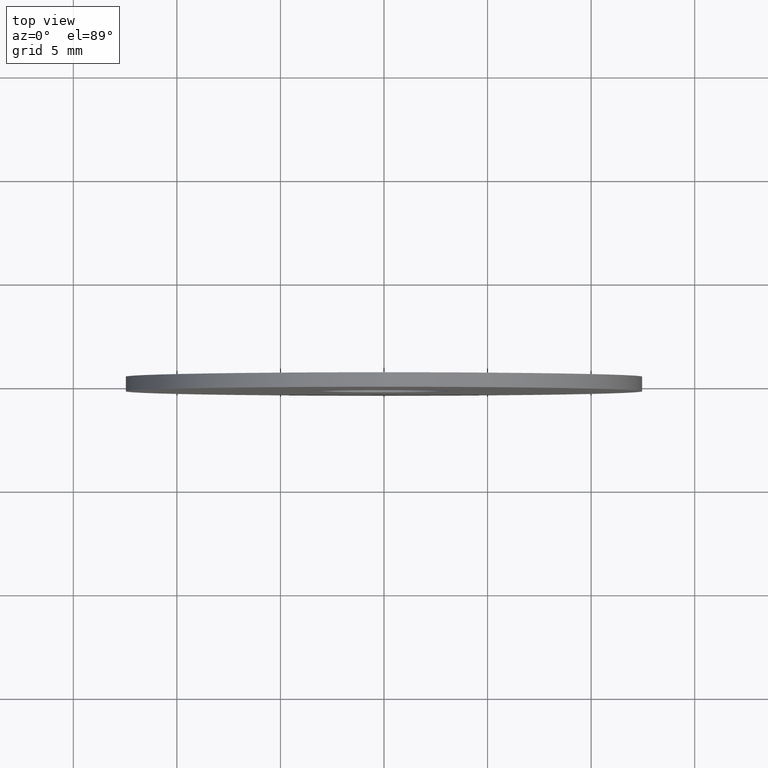
[diagram: clean part render]
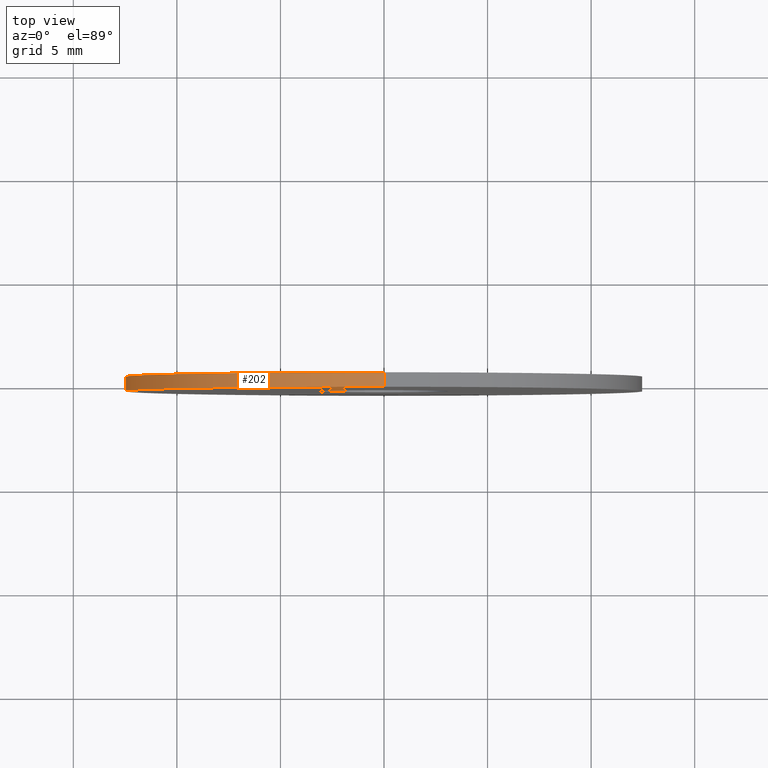
[diagram: same view with one face highlighted and labeled with its STEP entity id]
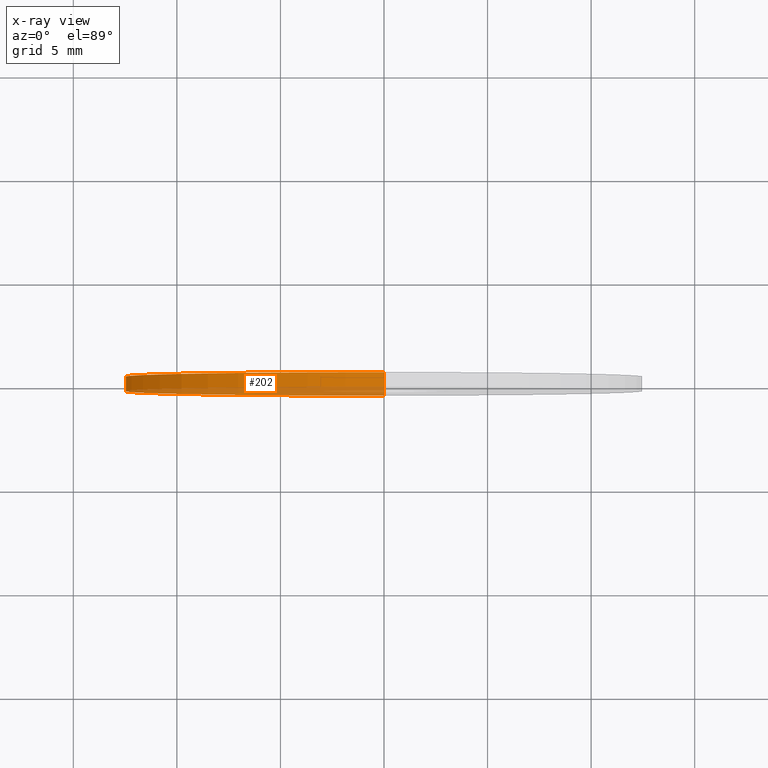
[diagram: x-ray of the same camera — body ghosted, the highlighted face saturated]
A machine part, top view. The second image highlights one B-rep face of the part: STEP entity #202.
The next image is the same camera in x-ray: the body ghosted, the highlighted face saturated — about 27% of this face is hidden behind the body in this view.
In plain terms, the highlighted cylindrical surface (partial cylindrical patch) has radius 12.5 mm, axis along (-0, -1, -0).
Its self-contained STEP definition (entity closure, byte-faithful):
#1 = VERTEX_POINT ( 'NONE', #26 ) ;
#8 = EDGE_CURVE ( 'NONE', #189, #126, #82, .T. ) ;
#14 = CARTESIAN_POINT ( 'NONE',  ( 0.000000000000000000, 0.3499999999999999778, -12.50000000000000000 ) ) ;
#16 = DIRECTION ( 'NONE',  ( -0.000000000000000000, -1.000000000000000000, -0.000000000000000000 ) ) ;
#23 = CARTESIAN_POINT ( 'NONE',  ( 1.530808498934191521E-15, -0.3499999999999999778, 12.50000000000000000 ) ) ;
#26 = CARTESIAN_POINT ( 'NONE',  ( 0.000000000000000000, -0.3499999999999999778, -12.50000000000000000 ) ) ;
#29 = AXIS2_PLACEMENT_3D ( 'NONE', #78, #204, #49 ) ;
#31 = DIRECTION ( 'NONE',  ( -0.000000000000000000, -1.000000000000000000, -0.000000000000000000 ) ) ;
#35 = AXIS2_PLACEMENT_3D ( 'NONE', #161, #65, #125 ) ;
#44 = VERTEX_POINT ( 'NONE', #23 ) ;
#45 = ORIENTED_EDGE ( 'NONE', *, *, #8, .F. ) ;
#49 = DIRECTION ( 'NONE',  ( 0.000000000000000000, 0.000000000000000000, -1.000000000000000000 ) ) ;
#60 = DIRECTION ( 'NONE',  ( 0.000000000000000000, 0.000000000000000000, 1.000000000000000000 ) ) ;
#65 = DIRECTION ( 'NONE',  ( 0.000000000000000000, 1.000000000000000000, 0.000000000000000000 ) ) ;
#67 = CYLINDRICAL_SURFACE ( 'NONE', #29, 12.50000000000000000 ) ;
#78 = CARTESIAN_POINT ( 'NONE',  ( 0.000000000000000000, 0.3499999999999999778, 0.000000000000000000 ) ) ;
#81 = CARTESIAN_POINT ( 'NONE',  ( 0.000000000000000000, 0.3499999999999999778, -12.50000000000000000 ) ) ;
#82 = CIRCLE ( 'NONE', #191, 12.50000000000000000 ) ;
#90 = VECTOR ( 'NONE', #31, 1000.000000000000000 ) ;
#93 = ORIENTED_EDGE ( 'NONE', *, *, #207, .T. ) ;
#109 = DIRECTION ( 'NONE',  ( 0.000000000000000000, 1.000000000000000000, 0.000000000000000000 ) ) ;
#111 = ORIENTED_EDGE ( 'NONE', *, *, #221, .T. ) ;
#117 = CARTESIAN_POINT ( 'NONE',  ( 1.530808498934191521E-15, 0.3499999999999999778, 12.50000000000000000 ) ) ;
#125 = DIRECTION ( 'NONE',  ( 0.000000000000000000, 0.000000000000000000, 1.000000000000000000 ) ) ;
#126 = VERTEX_POINT ( 'NONE', #219 ) ;
#131 = EDGE_LOOP ( 'NONE', ( #139, #45, #111, #93 ) ) ;
#139 = ORIENTED_EDGE ( 'NONE', *, *, #218, .F. ) ;
#161 = CARTESIAN_POINT ( 'NONE',  ( 0.000000000000000000, -0.3499999999999999778, 0.000000000000000000 ) ) ;
#165 = CIRCLE ( 'NONE', #35, 12.50000000000000000 ) ;
#178 = CARTESIAN_POINT ( 'NONE',  ( 0.000000000000000000, 0.3499999999999999778, 0.000000000000000000 ) ) ;
#183 = VECTOR ( 'NONE', #16, 1000.000000000000000 ) ;
#185 = LINE ( 'NONE', #117, #183 ) ;
#189 = VERTEX_POINT ( 'NONE', #14 ) ;
#191 = AXIS2_PLACEMENT_3D ( 'NONE', #178, #109, #60 ) ;
#202 = ADVANCED_FACE ( 'NONE', ( #245 ), #67, .T. ) ;
#204 = DIRECTION ( 'NONE',  ( -0.000000000000000000, -1.000000000000000000, -0.000000000000000000 ) ) ;
#205 = LINE ( 'NONE', #81, #90 ) ;
#207 = EDGE_CURVE ( 'NONE', #1, #44, #165, .T. ) ;
#218 = EDGE_CURVE ( 'NONE', #126, #44, #185, .T. ) ;
#219 = CARTESIAN_POINT ( 'NONE',  ( 1.530808498934191521E-15, 0.3499999999999999778, 12.50000000000000000 ) ) ;
#221 = EDGE_CURVE ( 'NONE', #189, #1, #205, .T. ) ;
#245 = FACE_OUTER_BOUND ( 'NONE', #131, .T. ) ;